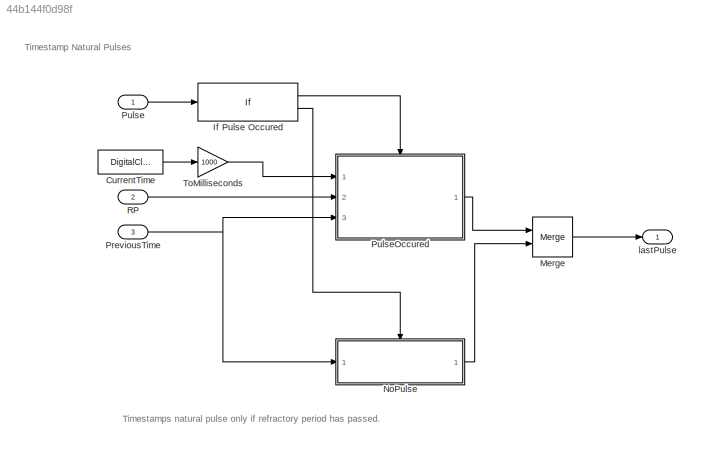
MODEL slx_44b144f0d98f
KIND model
CONFIG AbsTol = auto
CONFIG EnableMultiTasking = on
CONFIG FixedStep = 1e-3
CONFIG MaxStep = auto
CONFIG MinStep = auto
CONFIG RelTol = 1e-3
CONFIG SampleTimeConstraint = Unconstrained
CONFIG Solver = FixedStepAuto
CONFIG SolverName = FixedStepAuto
CONFIG StartTime = 0.0
CONFIG StopTime = 10.0
BLOCK [DigitalClock] CurrentTime
  SampleTime = 0.001
BLOCK [If] If Pulse Occured
  IfExpression = u1
  Ports = [1, 2]
BLOCK [Merge] Merge
  Ports = [2, 1]
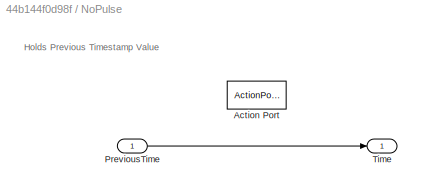
BLOCK [SubSystem] NoPulse
  Ports = [1, 1, 0, 0, 0, 0, 0, 1]
  RequestExecContextInheritance = off
  TreatAsAtomicUnit = on
BLOCK [ActionPort] NoPulse/Action Port
  ActionPortLabel = else
BLOCK [Inport] NoPulse/PreviousTime
BLOCK [Outport] NoPulse/Time
BLOCK [Inport] PreviousTime
  Port = 3
  Unit = ms
BLOCK [Inport] Pulse 
  OutDataTypeStr = boolean
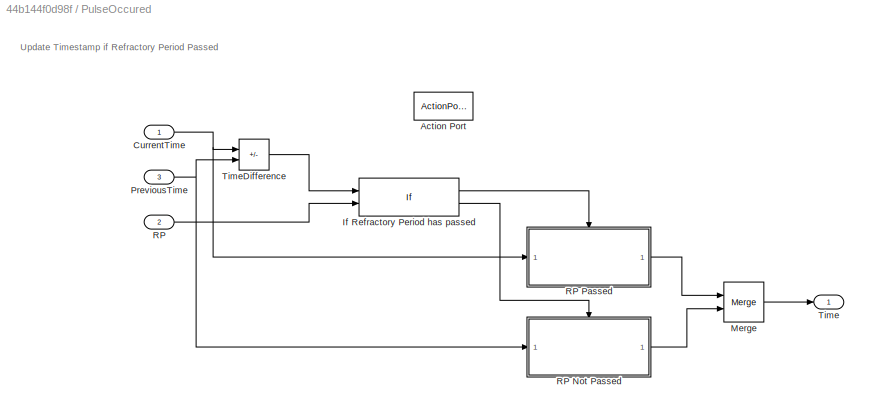
BLOCK [SubSystem] PulseOccured
  Ports = [3, 1, 0, 0, 0, 0, 0, 1]
  RequestExecContextInheritance = off
  TreatAsAtomicUnit = on
BLOCK [ActionPort] PulseOccured/Action Port
  ActionPortLabel = if(u1)
BLOCK [Inport] PulseOccured/CurrentTime
BLOCK [If] PulseOccured/If Refractory Period has passed
  IfExpression = u1>=u2
  NumInputs = 2
  Ports = [2, 2]
BLOCK [Merge] PulseOccured/Merge
  Ports = [2, 1]
BLOCK [Inport] PulseOccured/PreviousTime
  Port = 3
BLOCK [Inport] PulseOccured/RP
  Port = 2
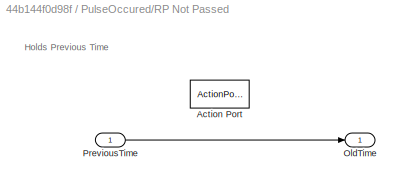
BLOCK [SubSystem] PulseOccured/RP Not Passed
  Ports = [1, 1, 0, 0, 0, 0, 0, 1]
  RequestExecContextInheritance = off
  TreatAsAtomicUnit = on
BLOCK [ActionPort] PulseOccured/RP Not Passed/Action Port
  ActionPortLabel = else
BLOCK [Outport] PulseOccured/RP Not Passed/OldTime
BLOCK [Inport] PulseOccured/RP Not Passed/PreviousTime
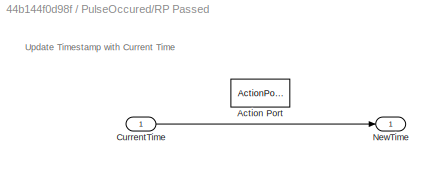
BLOCK [SubSystem] PulseOccured/RP Passed
  Ports = [1, 1, 0, 0, 0, 0, 0, 1]
  RequestExecContextInheritance = off
  TreatAsAtomicUnit = on
BLOCK [ActionPort] PulseOccured/RP Passed/Action Port
  ActionPortLabel = if(u1>=u2)
BLOCK [Inport] PulseOccured/RP Passed/CurrentTime
BLOCK [Outport] PulseOccured/RP Passed/NewTime
BLOCK [Outport] PulseOccured/Time
BLOCK [Sum] PulseOccured/TimeDifference
  AccumDataTypeStr = uint16
  IconShape = rectangular
  Inputs = +-
  OutDataTypeStr = Inherit: Same as accumulator
  Ports = [2, 1]
BLOCK [Inport] RP
  OutDataTypeStr = uint16
  Port = 2
  Unit = ms
BLOCK [Gain] ToMilliseconds
  Gain = 1000
BLOCK [Outport] lastPulse
ANNOTATION (root): Timestamp Natural Pulses
ANNOTATION (root): Timestamps natural pulse only if refractory period has passed.
ANNOTATION NoPulse: Holds Previous Timestamp Value
ANNOTATION PulseOccured: Update Timestamp if Refractory Period Passed
ANNOTATION PulseOccured/RP Not Passed: Holds Previous Time
ANNOTATION PulseOccured/RP Passed: Update Timestamp with Current Time
LINE CurrentTime:1 -> ToMilliseconds:1
LINE If Pulse Occured:1 -> PulseOccured:ifaction
LINE If Pulse Occured:2 -> NoPulse:ifaction
LINE Merge:1 -> lastPulse:1
LINE NoPulse/PreviousTime:1 -> NoPulse/Time:1
LINE NoPulse:1 -> Merge:2
NET PreviousTime:1 -> NoPulse:1, PulseOccured:3
LINE Pulse :1 -> If Pulse Occured:1
NET PulseOccured/CurrentTime:1 -> PulseOccured/RP Passed:1, PulseOccured/TimeDifference:1
LINE PulseOccured/If Refractory Period has passed:1 -> PulseOccured/RP Passed:ifaction
LINE PulseOccured/If Refractory Period has passed:2 -> PulseOccured/RP Not Passed:ifaction
LINE PulseOccured/Merge:1 -> PulseOccured/Time:1
NET PulseOccured/PreviousTime:1 -> PulseOccured/RP Not Passed:1, PulseOccured/TimeDifference:2
LINE PulseOccured/RP Not Passed/PreviousTime:1 -> PulseOccured/RP Not Passed/OldTime:1
LINE PulseOccured/RP Not Passed:1 -> PulseOccured/Merge:2
LINE PulseOccured/RP Passed/CurrentTime:1 -> PulseOccured/RP Passed/NewTime:1
LINE PulseOccured/RP Passed:1 -> PulseOccured/Merge:1
LINE PulseOccured/RP:1 -> PulseOccured/If Refractory Period has passed:2
LINE PulseOccured/TimeDifference:1 -> PulseOccured/If Refractory Period has passed:1
LINE PulseOccured:1 -> Merge:1
LINE RP:1 -> PulseOccured:2
LINE ToMilliseconds:1 -> PulseOccured:1
note: NET lines group one-source signal fan-out (src -> all destinations, sorted); 1:1 wires keep LINE
